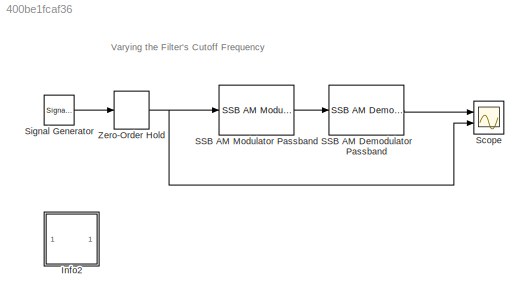
MODEL slx_400be1fcaf36
KIND model
BLOCK [SubSystem] Info2
  AncestorBlock = commblksprivate/Info
  OpenFcn = helpview([docroot '/toolbox/comm/comm.map'], 'doc_filtercutoffs')
  Ports = []
  RequestExecContextInheritance = off
BLOCK [Reference] SSB AM Demodulator Passband  REF=commanapbnd3/SSB AM
Demodulator
Passband
  Fc = 25
  Ph = 0
  Ports = [1, 1]
  Rp = 0.1
  Rs = 50
  SourceBlock = commanapbnd3/SSB AM\nDemodulator\nPassband
  SourceType = SSB AM Demodulator Passband
  cf = 30
  method = Butterworth
  n = 2
BLOCK [Reference] SSB AM Modulator Passband  REF=commanapbnd3/SSB AM
Modulator
Passband
  Fc = 25
  Ho = 200
  Ph = 0
  Ports = [1, 1]
  Sd = Upper
  SourceBlock = commanapbnd3/SSB AM\nModulator\nPassband
  SourceType = SSB AM Modulator Passband
BLOCK [Scope] Scope
  DataFormat = StructureWithTime
  Floating = off
  NumInputPorts = 2
  Ports = [2]
  SampleTime = 0
  SaveName = ScopeData1
  ShowLegends = off
  YMax = 5~5
  YMin = -5~-5
BLOCK [SignalGenerator] Signal Generator
  Amplitude = 4
  Frequency = .3
  Ports = [0, 1]
  WaveForm = sawtooth
BLOCK [ZeroOrderHold] Zero-Order Hold
  SampleTime = .01
ANNOTATION (root): Varying the Filter's Cutoff Frequency
LINE SSB AM Demodulator Passband:1 -> Scope:1
LINE SSB AM Modulator Passband:1 -> SSB AM Demodulator Passband:1
LINE Signal Generator:1 -> Zero-Order Hold:1
NET Zero-Order Hold:1 -> SSB AM Modulator Passband:1, Scope:2
note: NET lines group one-source signal fan-out (src -> all destinations, sorted); 1:1 wires keep LINE
